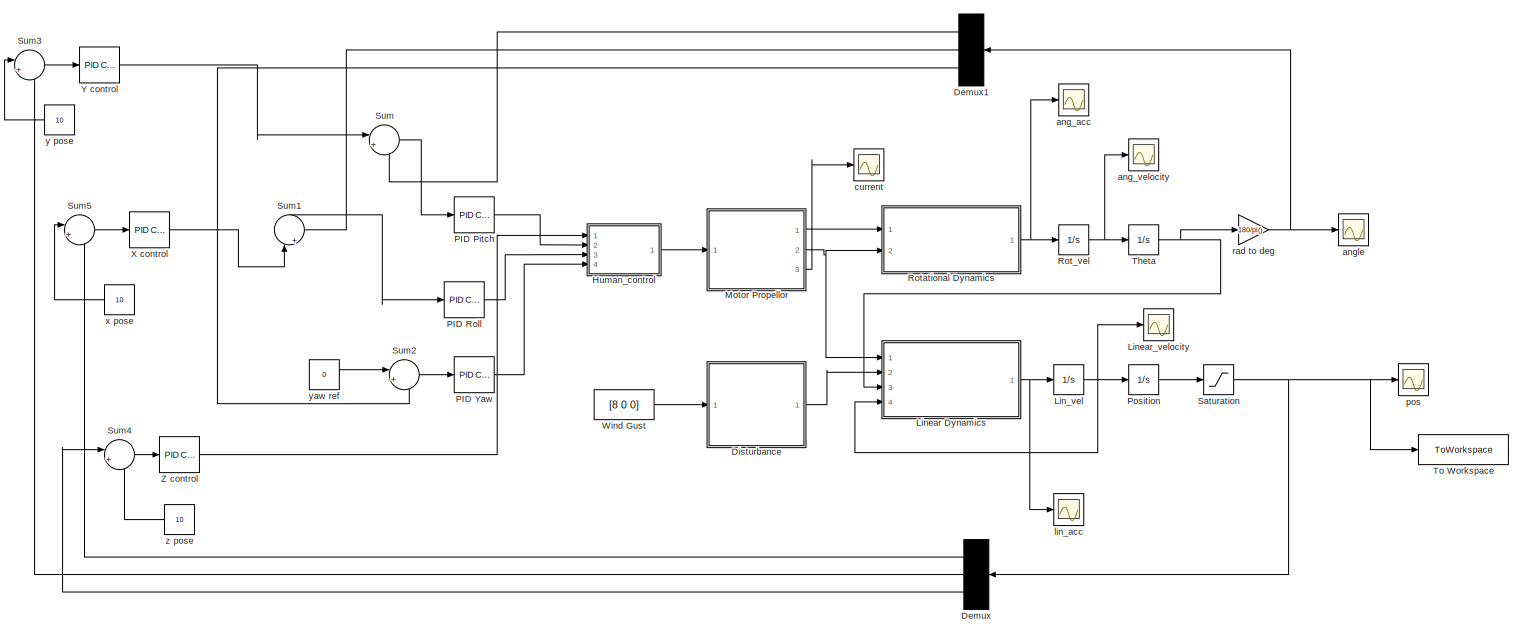
[diagram: root canvas - part 1/2, most of the canvas]
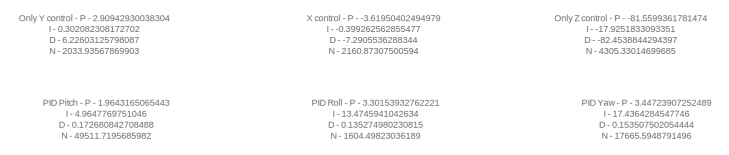
[diagram: root canvas - part 2/2, bottom left region]
MODEL slx_2372bafacdbd
KIND model
CONFIG AbsTol = auto
CONFIG EnableMultiTasking = off
CONFIG FixedStep = auto
CONFIG MaxStep = auto
CONFIG MinStep = auto
CONFIG RelTol = 1e-3
CONFIG SampleTimeConstraint = Unconstrained
CONFIG SolverName = VariableStepAuto
CONFIG StartTime = 0.0
CONFIG StopTime = 100
BLOCK [Constant]  x pose
  NameLocation = top
  Value = 10
BLOCK [Constant]  y pose
  NameLocation = top
  Value = 10
BLOCK [Constant]  yaw ref
  Value = 0
BLOCK [Constant]  z pose
  NameLocation = top
  Value = 10
BLOCK [Demux] Demux
  Outputs = 3
  Ports = [1, 3]
BLOCK [Demux] Demux1
  Outputs = 3
  Ports = [1, 3]
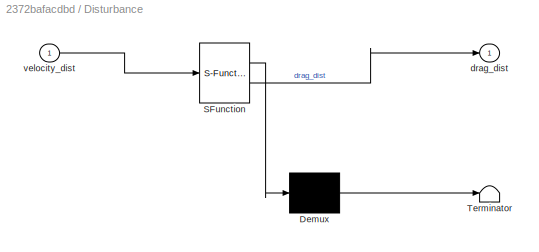
BLOCK [SubSystem] Disturbance
  ErrorFcn = Stateflow.Translate.translate
  PermitHierarchicalResolution = ExplicitOnly
  Ports = [1, 1]
  RequestExecContextInheritance = off
  SFBlockType = MATLAB Function
  TreatAsAtomicUnit = on
BLOCK [Demux] Disturbance/ Demux 
  Outputs = 1
  Ports = [1, 1]
BLOCK [S-Function] Disturbance/ SFunction 
  EnableBusSupport = on
  FunctionName = sf_sfun
  PortCounts = [1 2]
  Ports = [1, 2]
  SFcnIsStateOwnerBlock = off
  SFunctionDeploymentMode = off
  Tag = Stateflow S-Function 4
BLOCK [Terminator] Disturbance/ Terminator 
BLOCK [Outport] Disturbance/drag_dist
BLOCK [Inport] Disturbance/velocity_dist
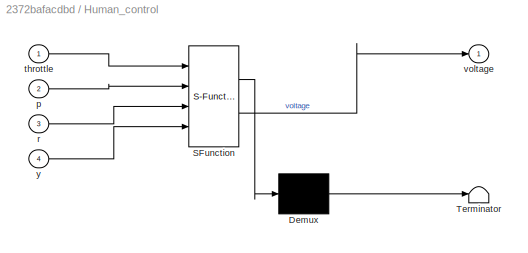
BLOCK [SubSystem] Human_control
  ErrorFcn = Stateflow.Translate.translate
  PermitHierarchicalResolution = ExplicitOnly
  Ports = [4, 1]
  RequestExecContextInheritance = off
  SFBlockType = MATLAB Function
  TreatAsAtomicUnit = on
BLOCK [Demux] Human_control/ Demux 
  Outputs = 1
  Ports = [1, 1]
BLOCK [S-Function] Human_control/ SFunction 
  EnableBusSupport = on
  FunctionName = sf_sfun
  PortCounts = [4 2]
  Ports = [4, 2]
  SFcnIsStateOwnerBlock = off
  SFunctionDeploymentMode = off
  Tag = Stateflow S-Function 5
BLOCK [Terminator] Human_control/ Terminator 
BLOCK [Inport] Human_control/p
  Port = 2
BLOCK [Inport] Human_control/r
  Port = 3
BLOCK [Inport] Human_control/throttle
BLOCK [Outport] Human_control/voltage
BLOCK [Inport] Human_control/y
  Port = 4
BLOCK [Integrator] Lin_vel
  Ports = [1, 1]
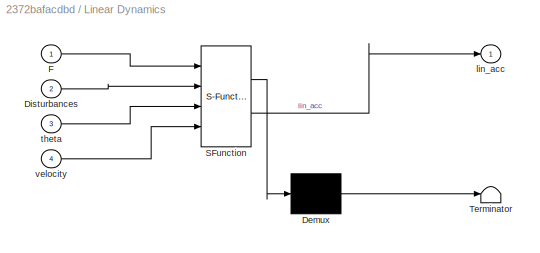
BLOCK [SubSystem] Linear Dynamics
  ErrorFcn = Stateflow.Translate.translate
  PermitHierarchicalResolution = ExplicitOnly
  Ports = [4, 1]
  RequestExecContextInheritance = off
  SFBlockType = MATLAB Function
  TreatAsAtomicUnit = on
BLOCK [Demux] Linear Dynamics/ Demux 
  Outputs = 1
  Ports = [1, 1]
BLOCK [S-Function] Linear Dynamics/ SFunction 
  EnableBusSupport = on
  FunctionName = sf_sfun
  PortCounts = [4 2]
  Ports = [4, 2]
  SFcnIsStateOwnerBlock = off
  SFunctionDeploymentMode = off
  Tag = Stateflow S-Function 3
BLOCK [Terminator] Linear Dynamics/ Terminator 
BLOCK [Inport] Linear Dynamics/Disturbances
  Port = 2
BLOCK [Inport] Linear Dynamics/F
BLOCK [Outport] Linear Dynamics/lin_acc
BLOCK [Inport] Linear Dynamics/theta
  Port = 3
BLOCK [Inport] Linear Dynamics/velocity
  Port = 4
BLOCK [Scope] Linear_velocity
  Floating = off
  NumInputPorts = 1
  Ports = [1]
  ScopeSpecificationString = Simulink.scopes.TimeScopeBlockCfg('CurrentConfiguration', extmgr.ConfigurationSet(extmgr.Configuration('Core','General UI',true),extmgr.Configuration('Core','Source UI',true),extmgr.Configuration('Sources','WiredSimulink',true),extmgr.Configuration('Visuals','Time Domain',true,'SerializedDisplays',{struct('MinYLimReal','-0.47935','MaxYLimReal','4.31418','YLabelReal','','MinYLimMag','0.00000','MaxY...<+1386ch>
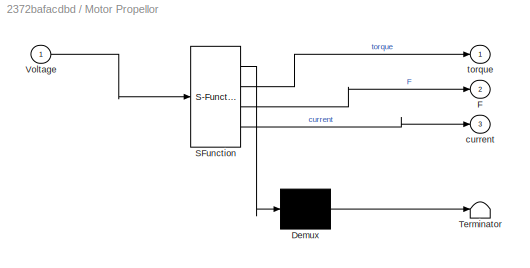
BLOCK [SubSystem] Motor Propellor
  ErrorFcn = Stateflow.Translate.translate
  PermitHierarchicalResolution = ExplicitOnly
  Ports = [1, 3]
  RequestExecContextInheritance = off
  SFBlockType = MATLAB Function
  TreatAsAtomicUnit = on
BLOCK [Demux] Motor Propellor/ Demux 
  Outputs = 1
  Ports = [1, 1]
BLOCK [S-Function] Motor Propellor/ SFunction 
  EnableBusSupport = on
  FunctionName = sf_sfun
  PortCounts = [1 4]
  Ports = [1, 4]
  SFcnIsStateOwnerBlock = off
  SFunctionDeploymentMode = off
  Tag = Stateflow S-Function 2
BLOCK [Terminator] Motor Propellor/ Terminator 
BLOCK [Outport] Motor Propellor/F
  Port = 2
BLOCK [Inport] Motor Propellor/Voltage
BLOCK [Outport] Motor Propellor/current
  Port = 3
BLOCK [Outport] Motor Propellor/torque
BLOCK [Reference] PID Pitch  REF=pid_lib/PID Controller
  Ports = [1, 1]
  SourceBlock = pid_lib/PID Controller
  SourceProductBaseCode = SL
  SourceType = PID 1dof
BLOCK [Reference] PID Roll  REF=pid_lib/PID Controller
  Ports = [1, 1]
  SourceBlock = pid_lib/PID Controller
  SourceProductBaseCode = SL
  SourceType = PID 1dof
BLOCK [Reference] PID Yaw  REF=pid_lib/PID Controller
  Ports = [1, 1]
  SourceBlock = pid_lib/PID Controller
  SourceProductBaseCode = SL
  SourceType = PID 1dof
BLOCK [Integrator] Position
  Ports = [1, 1]
BLOCK [Integrator] Rot_vel
  Ports = [1, 1]
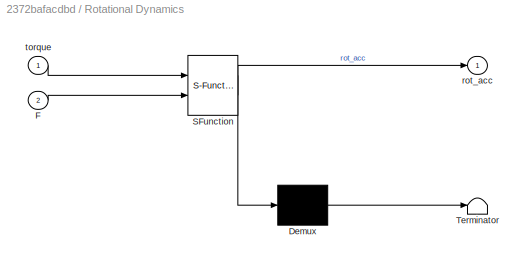
BLOCK [SubSystem] Rotational Dynamics
  ErrorFcn = Stateflow.Translate.translate
  PermitHierarchicalResolution = ExplicitOnly
  Ports = [2, 1]
  RequestExecContextInheritance = off
  SFBlockType = MATLAB Function
  TreatAsAtomicUnit = on
BLOCK [Demux] Rotational Dynamics/ Demux 
  Outputs = 1
  Ports = [1, 1]
BLOCK [S-Function] Rotational Dynamics/ SFunction 
  EnableBusSupport = on
  FunctionName = sf_sfun
  PortCounts = [2 2]
  Ports = [2, 2]
  SFcnIsStateOwnerBlock = off
  SFunctionDeploymentMode = off
  Tag = Stateflow S-Function 1
BLOCK [Terminator] Rotational Dynamics/ Terminator 
BLOCK [Inport] Rotational Dynamics/F
  Port = 2
BLOCK [Outport] Rotational Dynamics/rot_acc
BLOCK [Inport] Rotational Dynamics/torque
BLOCK [Saturate] Saturation
  LowerLimit = [-inf,-inf,0]
  UpperLimit = inf
BLOCK [Sum] Sum
  Inputs = |+-
  Ports = [2, 1]
BLOCK [Sum] Sum1
  Inputs = |+-
  NameLocation = right
  Ports = [2, 1]
BLOCK [Sum] Sum2
  Inputs = |+-
  Ports = [2, 1]
BLOCK [Sum] Sum3
  Inputs = |+-
  Ports = [2, 1]
BLOCK [Sum] Sum4
  Inputs = |+-
  Ports = [2, 1]
BLOCK [Sum] Sum5
  Inputs = |+-
  Ports = [2, 1]
BLOCK [Integrator] Theta
  Ports = [1, 1]
BLOCK [ToWorkspace] To Workspace
  FixptAsFi = on
  MaxDataPoints = inf
  Ports = [1]
  SampleTime = -1
  Save2DSignal = 2-D array (concatenate along first dimension)
  VariableName = Position
BLOCK [Constant] Wind Gust
  Value = [8 0 0]
BLOCK [Reference] X control  REF=pid_lib/PID Controller
  Ports = [1, 1]
  SourceBlock = pid_lib/PID Controller
  SourceProductBaseCode = SL
  SourceType = PID 1dof
BLOCK [Reference] Y control  REF=pid_lib/PID Controller
  Ports = [1, 1]
  SourceBlock = pid_lib/PID Controller
  SourceProductBaseCode = SL
  SourceType = PID 1dof
BLOCK [Reference] Z control  REF=pid_lib/PID Controller
  Ports = [1, 1]
  SourceBlock = pid_lib/PID Controller
  SourceProductBaseCode = SL
  SourceType = PID 1dof
BLOCK [Scope] ang_acc
  Floating = off
  NumInputPorts = 1
  Ports = [1]
  ScopeSpecificationString = Simulink.scopes.TimeScopeBlockCfg('CurrentConfiguration', extmgr.ConfigurationSet(extmgr.Configuration('Core','General UI',true),extmgr.Configuration('Core','Source UI',true),extmgr.Configuration('Sources','WiredSimulink',true,'DataLoggingVariableName','ScopeData5'),extmgr.Configuration('Visuals','Time Domain',true,'SerializedDisplays',{struct('MinYLimReal','-1.00000','MaxYLimReal','1.00000','YLab...<+1522ch>
BLOCK [Scope] ang_velocity
  Floating = off
  NumInputPorts = 1
  Ports = [1]
  ScopeSpecificationString = Simulink.scopes.TimeScopeBlockCfg('CurrentConfiguration', extmgr.ConfigurationSet(extmgr.Configuration('Core','General UI',true),extmgr.Configuration('Core','Source UI',true),extmgr.Configuration('Sources','WiredSimulink',true,'DataLoggingVariableName','ScopeData1'),extmgr.Configuration('Visuals','Time Domain',true,'SerializedDisplays',{struct('MinYLimReal','-6.37057','MaxYLimReal','57.33509','YLa...<+1538ch>
BLOCK [Scope] angle
  Floating = off
  NumInputPorts = 1
  Ports = [1]
  ScopeSpecificationString = Simulink.scopes.TimeScopeBlockCfg('CurrentConfiguration', extmgr.ConfigurationSet(extmgr.Configuration('Core','General UI',true),extmgr.Configuration('Core','Source UI',true),extmgr.Configuration('Sources','WiredSimulink',true,'DataLoggingVariableName','ScopeData2'),extmgr.Configuration('Visuals','Time Domain',true,'SerializedDisplays',{struct('MinYLimReal','-25.59367','MaxYLimReal','25.43201','YL...<+1501ch>
BLOCK [Scope] current
  Floating = off
  NumInputPorts = 1
  Ports = [1]
  ScopeSpecificationString = Simulink.scopes.TimeScopeBlockCfg('CurrentConfiguration', extmgr.ConfigurationSet(extmgr.Configuration('Core','General UI',true),extmgr.Configuration('Core','Source UI',true),extmgr.Configuration('Sources','WiredSimulink',true,'DataLoggingVariableName','ScopeData6'),extmgr.Configuration('Visuals','Time Domain',true,'SerializedDisplays',{struct('MinYLimReal','-340.87393','MaxYLimReal','465.31363','...<+1604ch>
BLOCK [Scope] lin_acc
  Floating = off
  NumInputPorts = 1
  Ports = [1]
  ScopeSpecificationString = Simulink.scopes.TimeScopeBlockCfg('CurrentConfiguration', extmgr.ConfigurationSet(extmgr.Configuration('Core','General UI',true),extmgr.Configuration('Core','Source UI',true),extmgr.Configuration('Sources','WiredSimulink',true,'DataLoggingVariableName','ScopeData4'),extmgr.Configuration('Visuals','Time Domain',true,'SerializedDisplays',{struct('MinYLimReal','-25.81655','MaxYLimReal','166.6896','YL...<+1516ch>
BLOCK [Scope] pos
  Floating = off
  NumInputPorts = 1
  Ports = [1]
  ScopeSpecificationString = Simulink.scopes.TimeScopeBlockCfg('CurrentConfiguration', extmgr.ConfigurationSet(extmgr.Configuration('Core','General UI',true),extmgr.Configuration('Core','Source UI',true),extmgr.Configuration('Sources','WiredSimulink',true,'DataLoggingVariableName','ScopeData3'),extmgr.Configuration('Visuals','Time Domain',true,'SerializedDisplays',{struct('MinYLimReal','-6.34083','MaxYLimReal','57.06748','YLa...<+1545ch>
BLOCK [Gain] rad to deg
  Gain = 180/pi()
ANNOTATION (root): Only Y control - P - 2.90942930038304 I - 0.302082308172702 D - 6.22603125798087 N - 2033.93567869903
ANNOTATION (root): Only Z control - P - -81.5599361781474 I - -17.9251833093351 D - -82.4538844294397 N - 4305.33014699685
ANNOTATION (root): PID Pitch - P - 1.9643165065443 I - 4.9647769751046 D - 0.172680842708488 N - 49511.7195685982
ANNOTATION (root): PID Roll - P - 3.30153932762221 I - 13.4745941042634 D - 0.135274980230815 N - 1604.49823036189
ANNOTATION (root): PID Yaw - P - 3.44723907252489 I - 17.4364284547746 D - 0.153507502054444 N - 17665.5948791496
ANNOTATION (root): X control - P - -3.61950402494979 I - -0.399262562855477 D - -7.2905536288344 N - 2160.87307500594
LINE  x pose:1 -> Sum5:1
LINE  y pose:1 -> Sum3:1
LINE  yaw ref:1 -> Sum2:1
LINE  z pose:1 -> Sum4:2
LINE Demux1:1 -> Sum:2
LINE Demux1:2 -> Sum1:2
LINE Demux1:3 -> Sum2:2
LINE Demux:1 -> Sum5:2
LINE Demux:2 -> Sum3:2
LINE Demux:3 -> Sum4:1
LINE Disturbance:1 -> Linear Dynamics:2
LINE Human_control:1 -> Motor Propellor:1
NET Lin_vel:1 -> Linear Dynamics:4, Linear_velocity:1, Position:1
NET Linear Dynamics:1 -> Lin_vel:1, lin_acc:1
LINE Motor Propellor:1 -> Rotational Dynamics:1
NET Motor Propellor:2 -> Linear Dynamics:1, Rotational Dynamics:2
LINE Motor Propellor:3 -> current:1
LINE PID Pitch:1 -> Human_control:2
LINE PID Roll:1 -> Human_control:3
LINE PID Yaw:1 -> Human_control:4
LINE Position:1 -> Saturation:1
NET Rot_vel:1 -> Theta:1, ang_velocity:1
NET Rotational Dynamics:1 -> Rot_vel:1, ang_acc:1
NET Saturation:1 -> Demux:1, To Workspace:1, pos:1
LINE Sum1:1 -> PID Roll:1
LINE Sum2:1 -> PID Yaw:1
LINE Sum3:1 -> Y control:1
LINE Sum4:1 -> Z control:1
LINE Sum5:1 -> X control:1
LINE Sum:1 -> PID Pitch:1
NET Theta:1 -> Linear Dynamics:3, rad to deg:1
LINE Wind Gust:1 -> Disturbance:1
LINE X control:1 -> Sum1:1
LINE Y control:1 -> Sum:1
LINE Z control:1 -> Human_control:1
NET rad to deg:1 -> Demux1:1, angle:1
note: NET lines group one-source signal fan-out (src -> all destinations, sorted); 1:1 wires keep LINE
CHART Rotational Dynamics states=1 transitions=1
  STATE_LABEL 'eML_blk_kernel()'
  STATE_LABEL 'SCRIPT:\nfunction rot_acc = fcn(torque, F)\nMoment = [0, 0, 0];  %x y z axis moments\nrot_acc = [0, 0, 0];  %x y z rot_acceleration\nI = [0.003, 0.003, 0.007];  %Moment of inertia about x y z axis\nMoment(1) = (F(3) + F(4))*0.237/2 - (F(1) + F(2))*0.237/2;   % +ve - pitch forward\nMoment(2) = (F(2) + F(3))*0.237/2 - (F(1) + F(4))*0.237/2;   % +ve - roll clockwise from front\nMoment(3) = -(torque(4) + tor...<+114ch>'
CHART Motor Propellor states=1 transitions=1
  STATE_LABEL 'eML_blk_kernel()'
  STATE_LABEL 'SCRIPT:\nfunction [torque, F, current] = fcn(Voltage)\nRPM = [0, 0, 0, 0];\ntorque = [0, 0, 0, 0];\ncurrent = [0, 0, 0, 0];\nF=[0, 0, 0, 0];\nK_v = 1400;\n\nRPM = 2.6931*Voltage.^3+1400*Voltage;\nCt = 2*10^-15*RPM.^3-4*10^-11*RPM.^2+3*10^-7*RPM+0.1013;\nF = Ct*1.225.*(RPM/60).^2*(0.2)^4;\nfor i=1:4    \n    torque(i) = -(-1)^(i)*(4*10^-14*RPM(i)^3 + 8*10^-12*RPM(i)^2 + 3*10^-6*RPM(i));\n    current(i) = K_v * ...<+18ch>'
CHART Linear Dynamics states=1 transitions=1
  STATE_LABEL 'eML_blk_kernel()'
  STATE_LABEL 'SCRIPT:\nfunction lin_acc = fcn(F, Disturbances, theta, velocity)\nm = 0.743;  %Mass of drone\ng = 9.81;  %Acc due to gravity\nA = [0.0197, 0.0197, 0.0512];  %x y z Projected area\nrho = 1.225;  %Density of air\nCd = 1.7; %Coeff of Drag\n\nlin_acc = [0 0 0];\nforce = [0 0 0];\nfprop = [0 0 0];\n\n%% Roll and Pitch Thrust Vector\nfprop(1) = -sin(theta(2))*cos(theta(1))*(F(1) + F(2) + F(3) + F(4));   % Prop forc...<+1209ch>'
CHART Disturbance states=1 transitions=1
  STATE_LABEL 'eML_blk_kernel()'
  STATE_LABEL 'SCRIPT:\nfunction drag_dist = fcn(velocity_dist)\nA = [0.0197 0.0197 0.0197*2];\ndrag_dist = [0 0 0];\nrho = 1.225;\nCd = 1;\nfor i=1:3\n    drag_dist(i) = 0.5*rho*velocity_dist(i)^2*A(i)*Cd;\n    if velocity_dist(i)>0   %Was greater earlier\n        drag_dist(i) = -drag_dist(i);\n    end\nend\n        \n'
CHART Human_control states=1 transitions=1
  STATE_LABEL 'eML_blk_kernel()'
  STATE_LABEL 'SCRIPT:\nfunction voltage = fcn(throttle, p, r, y)\ncorrect = 0;\nif (p/2 + r/2 + y/2)>(100-throttle)\n    correct = (p/2 + r/2 + y/2) - (100 - throttle);\nend\nif (p/2 + r/2 + y/2)>(throttle)\n    if correct<((p/2 + r/2 + y/2)-(throttle))\n        correct = (p/2 + r/2 + y/2) - (throttle);\n    end\nend\n\n% if correct ~= 0 \n%     if (p - correct/3*2) < 0\n%         p = 0;\n%     else\n%         p = p - correct/...<+531ch>'
CHART  states=0 transitions=0
CHART  states=0 transitions=0
CHART  states=0 transitions=0
CHART  states=0 transitions=0
CHART  states=0 transitions=0
